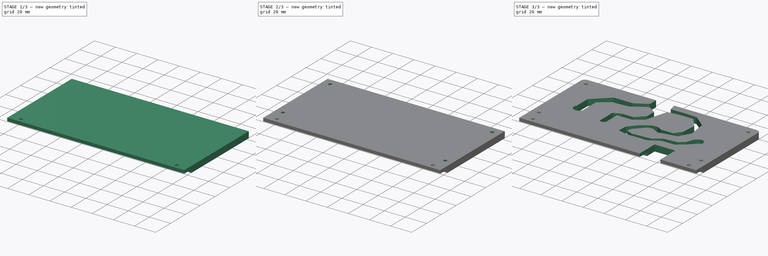
[diagram: build sequence overview — one tinted view per stage of 3, left to right]
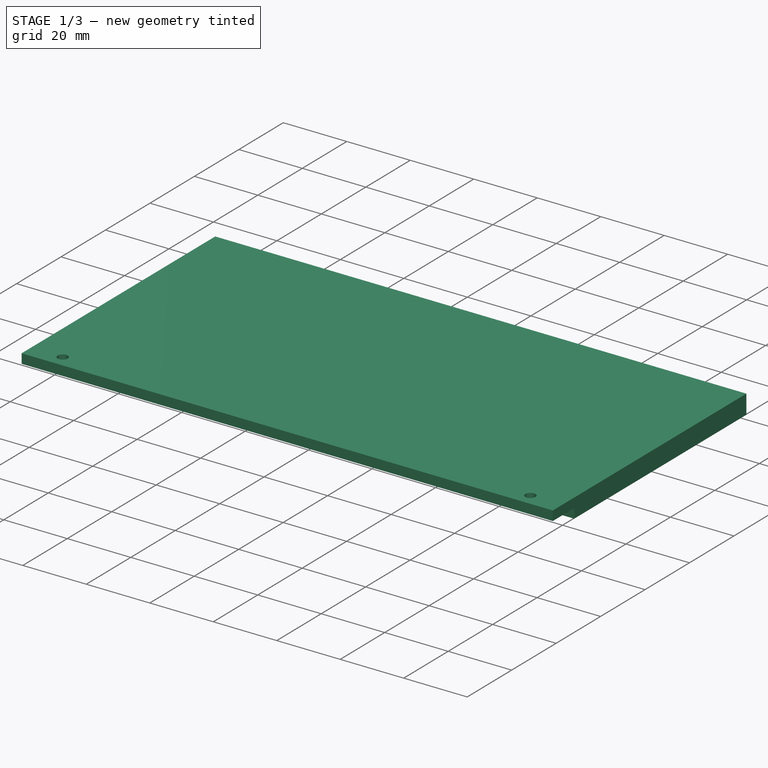
[diagram: stage 1 of 3 — iso view after this stage's code; geometry added in this stage tinted green]
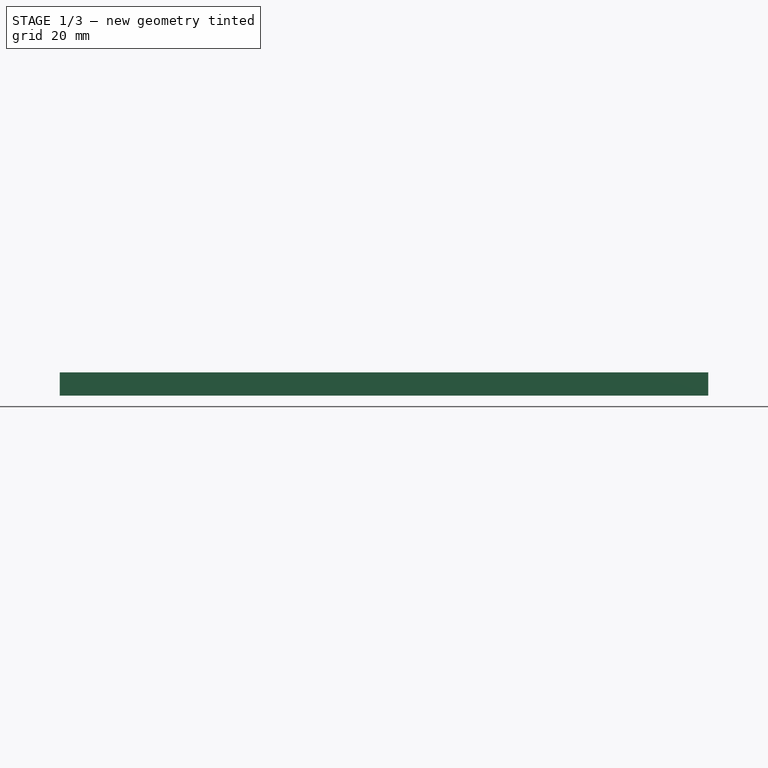
[diagram: stage 1 of 3 — front view after this stage's code; geometry added in this stage tinted green]
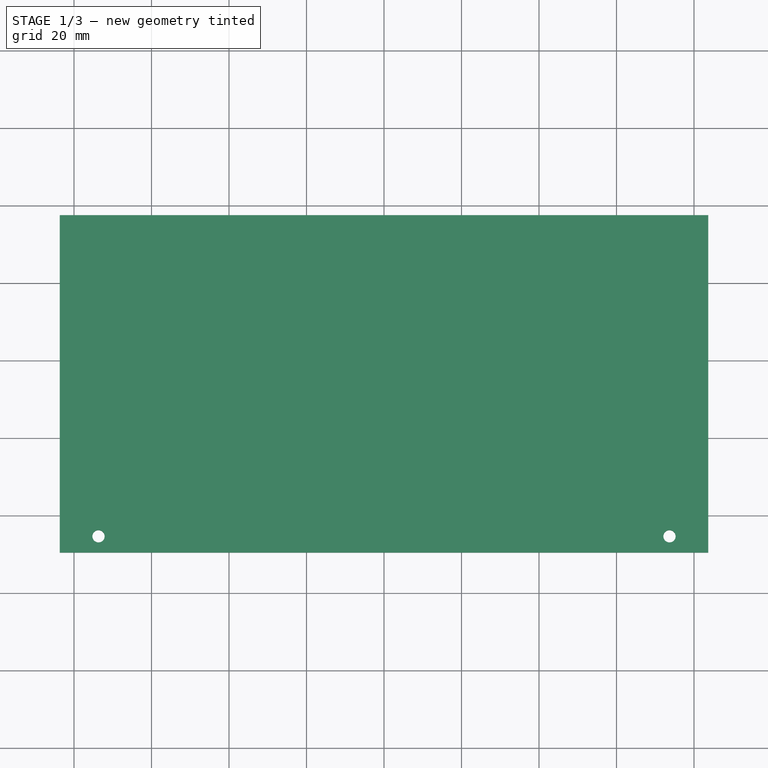
[diagram: stage 1 of 3 — top view after this stage's code; geometry added in this stage tinted green]
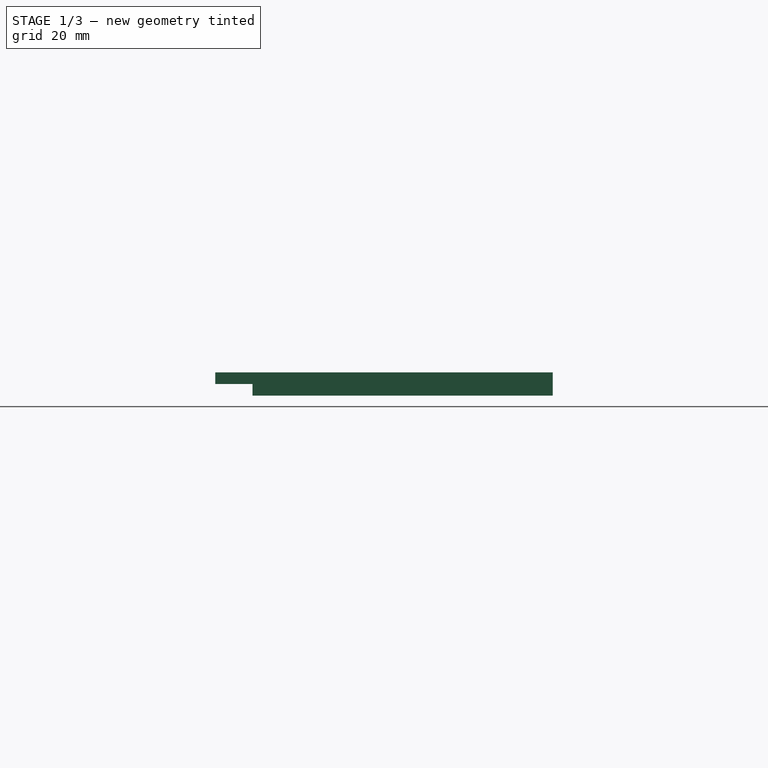
[diagram: stage 1 of 3 — right view after this stage's code; geometry added in this stage tinted green]
FCSTD DOCUMENT  (FreeCAD 0.20R29177 +426 (Git))
Label: libre_base (1)
License: All rights reserved
LicenseURL: http://en.wikipedia.org/wiki/All_rights_reserved
objects: Sketcher::SketchObject×6, PartDesign::Pocket×4, Spreadsheet::Sheet×2, PartDesign::Mirrored×2, PartDesign::Pad×1, PartDesign::Fillet×1, PartDesign::Body×1
note: 21 computed .brp shape members not serialized (recipe doc carries the construction recipe); baked Part::Feature solids carry a one-line shape summary decoded from their .brp
EXTERNAL_REF file=base_modular_holder.FCStd obj=Sketch
EXTERNAL_REF file=base_modular_holder.FCStd obj=Pad
EXTERNAL_REF file=base_modular_holder.FCStd obj=Sketch006
EXTERNAL_REF file=base_modular_holder.FCStd obj=Spreadsheet003
EXTERNAL_REF file=base_modular_holder.FCStd obj=Sketch009
EXTERNAL_REF file=base_modular_holder.FCStd obj=Spreadsheet004
EXTERNAL_REF file=libre_base.FCStd obj=Spreadsheet
EXTERNAL_REF file=libre_case.FCStd obj=Spreadsheet

FEATURE [Sketcher::SketchObject] Sketch
  FullyConstrained = true
  MapMode = 5
  Placement = pos=(0,0,0) rot=(0.57735,0.57735,0.57735;2.0944rad)
  Support = -> [YZ_Plane]
  expr: .Constraints.base_lip_xlen = <<base_modular_holder>>#<<Sketch>>.Constraints.back_lip_xlen - <<base_data>>.space
  expr: .Constraints.r_xlen = <<libre_data>>.full_ylen + <<base_data>>.screw_space * 2 + <<base_data>>.wall_thick * 2
  expr: Constraints[16] = <<base_modular_holder>>#<<Sketch>>.Constraints.small_ylen
  sketch-geometry (7):
    g0: LineSegment StartX=0 StartY=6 StartZ=0 EndX=77.5 EndY=6 EndZ=0
    g1: LineSegment StartX=77.5 StartY=6 StartZ=0 EndX=77.5 EndY=0 EndZ=0
    g2: LineSegment StartX=77.5 StartY=0 StartZ=0 EndX=0 EndY=0 EndZ=0
    g3: LineSegment StartX=0 StartY=0 StartZ=0 EndX=0 EndY=3 EndZ=0
    g4: LineSegment StartX=0 StartY=3 StartZ=0 EndX=-9.6 EndY=3 EndZ=0
    g5: LineSegment StartX=-9.6 StartY=3 StartZ=0 EndX=-9.6 EndY=6 EndZ=0
    g6: LineSegment StartX=-9.6 StartY=6 StartZ=0 EndX=0 EndY=6 EndZ=0
  constraints (21):
    c: PointOnObject(g0,g-2)
    c: Horizontal(g0)
    c: Coincident(g0,g1)
    c: PointOnObject(g1,g-1)
    c: Coincident(g1,g2)
    c: Vertical(g1)
    c: Coincident(g2,g3)
    c: PointOnObject(g3,g-2)
    c: Vertical(g3)
    c: Coincident(g3,g4)
    c: Horizontal(g4)
    c: Coincident(g4,g5)
    c: Vertical(g5)
    c: Coincident(g5,g6)
    c: Coincident(g6,g0)
    c: Horizontal(g6)
    c: DistanceY(g3,g3) = 3
    c: Horizontal(g2)
    c: Equal(g3,g5)
    c: DistanceX(g6,g6) = 9.6  'base_lip_xlen'
    c: DistanceX(g0,g0) = 77.5  'r_xlen'
FEATURE [Spreadsheet::Sheet] Spreadsheet  label="libre_data"
  cells = A1=Name; B1=Value; A2=full_ylen; B2(full_ylen)==57.5mm; D2=make the walls on the specific sides the thickness of the pad2type; A3=full_xlen; B3(full_xlen)==90.2mm; A4=full_zlen; B4(full_zlen)==19.5mm + 20mm; A5=pad2usb; B5(pad2usb)==2.2mm; A6=usb2av; B6(usb2av)==29.9mm; A7=av_len; B7(av_len)==7mm; A8=av_height; B8(av_height)==9.699999999999999mm + 1mm; A9=usb2hdmi; B9(usb2hdmi)==47.22mm; A10=hdmi_len; B10(hdmi_len)==15.2mm; A11=hdmi_height; B11(hdmi_height)==9.300000000000001mm + 1mm; A12=usb2power; B12(usb2power)==72.3mm - 0.5mm; A13=power_len; B13(power_len)==9mm; A14=power_height; B14(power_height)==7mm + 1mm; A15=power2pad; B15(power2pad)==1mm
FEATURE [PartDesign::Pad] Pad
  Direction = (1,-2e-16,3e-16)
  Length = 167.35
  Length2 = 10
  Midplane = true
  Placement = pos=(0,0,0) rot=(0.57735,0.57735,0.57735;2.0944rad)
  Profile = -> Sketch
  ReferenceAxis = -> Sketch [N_Axis]
  Type = 0
  expr: Length = <<base_modular_holder>>#<<Pad>>.Length
FEATURE [Spreadsheet::Sheet] Spreadsheet001  label="base_data"
  cells = A1=Name; B1=Value; A2=screw_space; B2(screw_space)==7mm; A3=wall_thick; B3(wall_thick)==3mm; A4=space; B4(space)==0.4mm
FEATURE [Sketcher::SketchObject] Sketch001
  FullyConstrained = true
  MapMode = 5
  Support = -> [XY_Plane]
  expr: Constraints[4] = <<base_modular_holder>>#<<Sketch>>.Constraints.back_lip_xlen / 2 + <<base_data>>.space
  expr: Constraints[5] = <<base_modular_holder>>#<<Sketch006>>.Constraints.hole_ylen
  expr: Constraints[7] = <<base_modular_holder>>#<<button_connect_data>>.screw_dia
  sketch-geometry (3):
    g0: LineSegment StartX=0 StartY=0 StartZ=0 EndX=0 EndY=-5.4 EndZ=0
    g1: LineSegment StartX=0 StartY=-5.4 StartZ=0 EndX=-73.675 EndY=-5.4 EndZ=0
    g2: Circle CenterX=-73.675 CenterY=-5.4 CenterZ=0 NormalX=0 NormalY=0 NormalZ=1 AngleXU=0 Radius=1.58
  constraints (8):
    c: Coincident(g0,g-1)
    c: PointOnObject(g0,g-2)
    c: Coincident(g1,g0)
    c: Horizontal(g1)
    c: DistanceY(g0,g0) = 5.4
    c: DistanceX(g1,g1) = 73.675
    c: Coincident(g2,g1)
    c: Diameter(g2) = 3.16
FEATURE [PartDesign::Pocket] Pocket
  BaseFeature = -> Pad
  Direction = (0,0,-1)
  Length = 5
  Length2 = 5
  Midplane = true
  Placement = pos=(0,0,0) rot=(0.57735,0.57735,0.57735;2.0944rad)
  Profile = -> Sketch001
  ReferenceAxis = -> Sketch001 [N_Axis]
  Type = 1
FEATURE [PartDesign::Mirrored] Mirrored
  BaseFeature = -> Pocket
  MirrorPlane = -> Sketch001 [V_Axis]
  Originals = -> [Pocket]
  Placement = pos=(0,0,0) rot=(0.57735,0.57735,0.57735;2.0944rad)
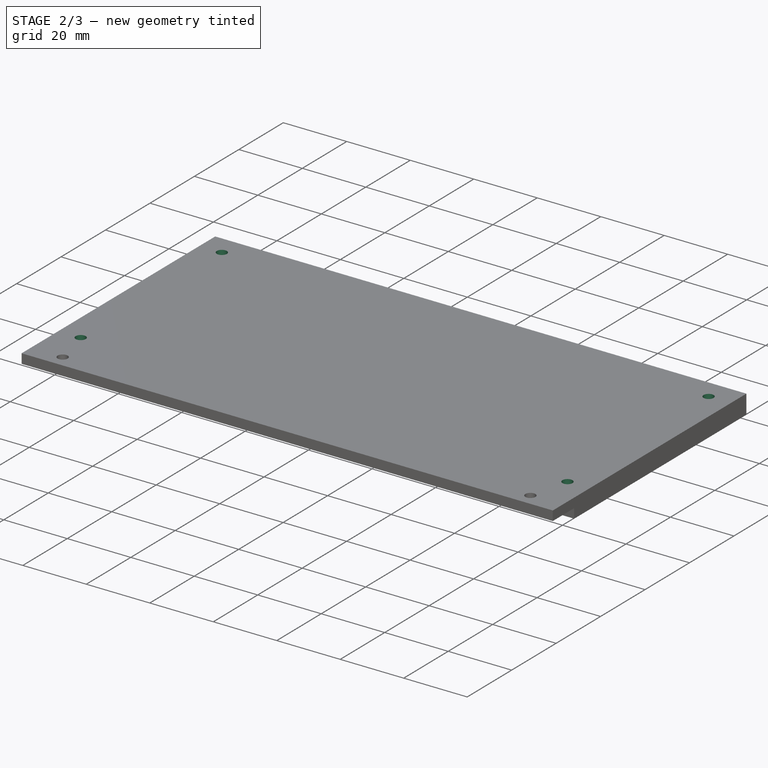
[diagram: stage 2 of 3 — iso view after this stage's code; geometry added in this stage tinted green]
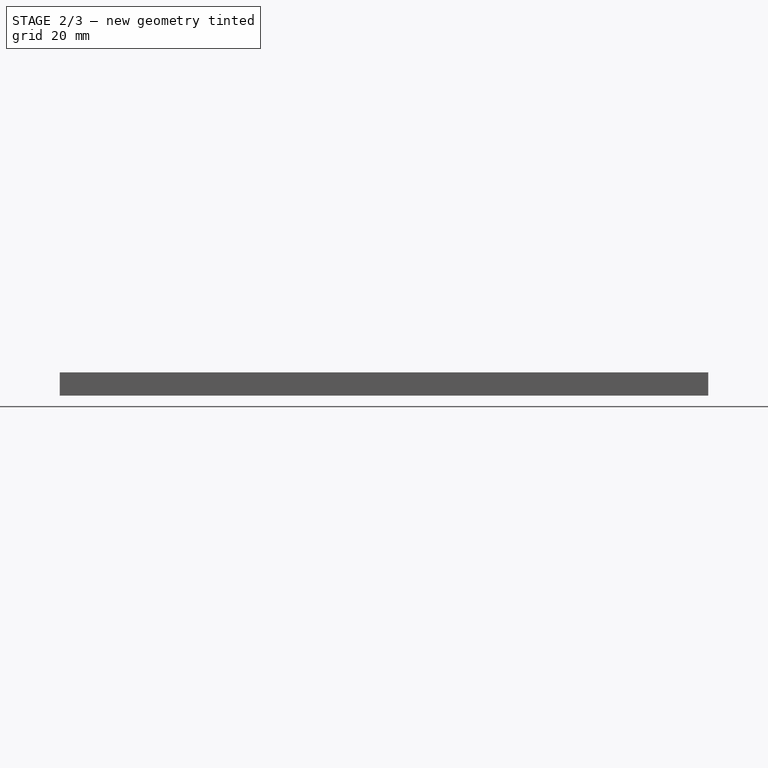
[diagram: stage 2 of 3 — front view after this stage's code; geometry added in this stage tinted green]
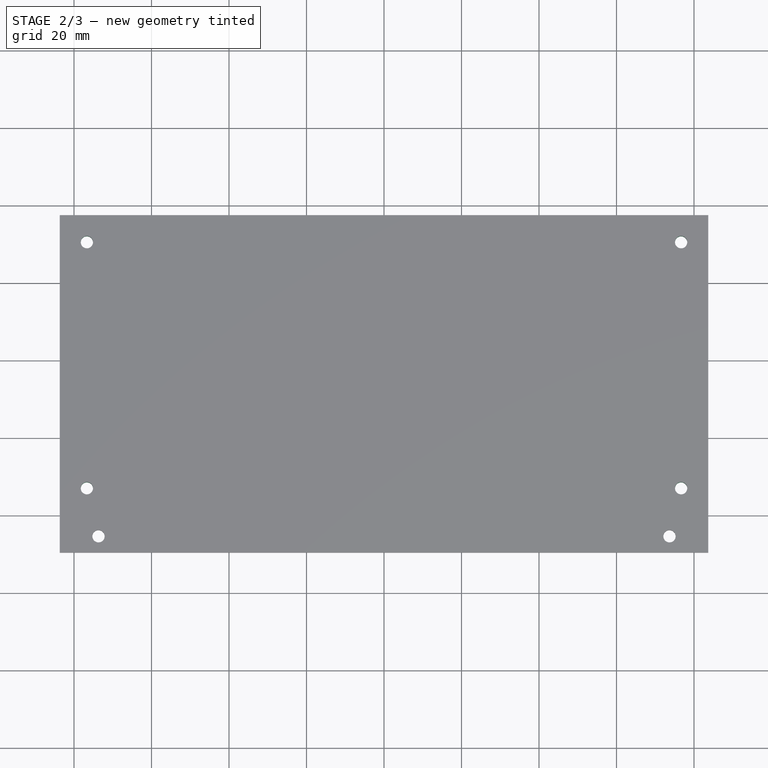
[diagram: stage 2 of 3 — top view after this stage's code; geometry added in this stage tinted green]
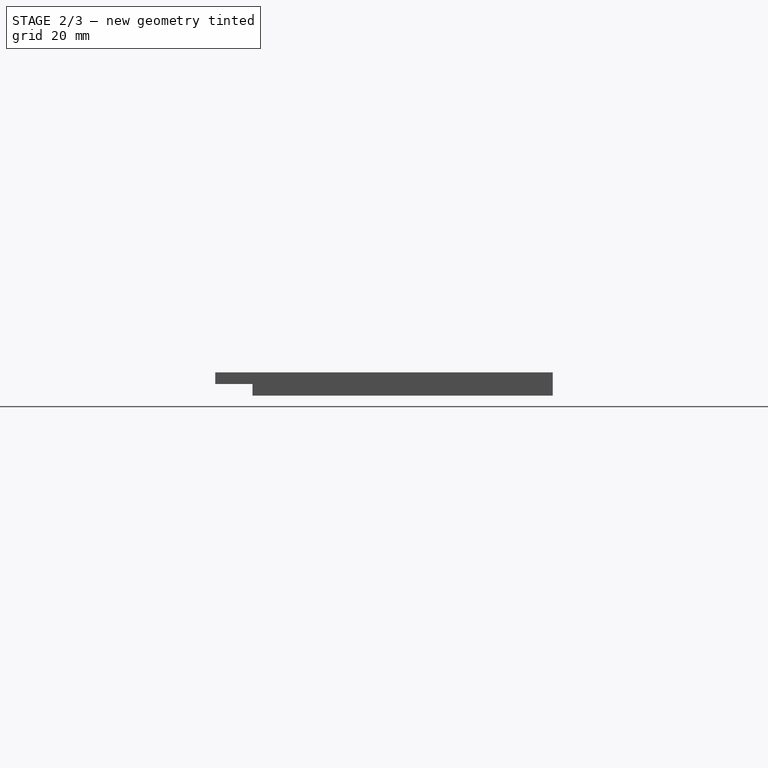
[diagram: stage 2 of 3 — right view after this stage's code; geometry added in this stage tinted green]
FEATURE [Sketcher::SketchObject] Sketch002
  FullyConstrained = true
  MapMode = 5
  Support = -> [XY_Plane]
  expr: .Constraints.dia = <<base_modular_holder>>#<<button_connect_data>>.screw_dia
  expr: .Constraints.pad_in = <<base_data>>.screw_space
  expr: Constraints[18] = <<Pad>>.Length / 2
  expr: Constraints[9] = <<Sketch>>.Constraints.r_xlen
  sketch-geometry (9):
    g0: LineSegment StartX=0 StartY=0 StartZ=0 EndX=0 EndY=7 EndZ=0
    g1: LineSegment StartX=0 StartY=7 StartZ=0 EndX=-76.675 EndY=7 EndZ=0
    g2: LineSegment StartX=0 StartY=7 StartZ=0 EndX=0 EndY=70.5 EndZ=0
    g3: LineSegment StartX=0 StartY=70.5 StartZ=0 EndX=0 EndY=77.5 EndZ=0
    g4: LineSegment StartX=0 StartY=70.5 StartZ=0 EndX=-76.675 EndY=70.5 EndZ=0
    g5: LineSegment StartX=-76.675 StartY=70.5 StartZ=0 EndX=-76.675 EndY=7 EndZ=0
    g6: LineSegment StartX=-76.675 StartY=70.5 StartZ=0 EndX=-83.675 EndY=70.5 EndZ=0
    g7: Circle CenterX=-76.675 CenterY=7 CenterZ=0 NormalX=0 NormalY=0 NormalZ=1 AngleXU=0 Radius=1.58
    g8: Circle CenterX=-76.675 CenterY=70.5 CenterZ=0 NormalX=0 NormalY=0 NormalZ=1 AngleXU=0 Radius=1.58
  constraints (24):
    c: Coincident(g0,g-1)
    c: PointOnObject(g0,g-2)
    c: Coincident(g1,g0)
    c: Horizontal(g1)
    c: DistanceY(g0,g0) = 7  'pad_in'
    c: Coincident(g2,g0)
    c: PointOnObject(g2,g-2)
    c: Coincident(g3,g2)
    c: PointOnObject(g3,g-2)
    c: DistanceY(g0,g3) = 77.5
    c: Equal(g0,g3)
    c: Coincident(g4,g2)
    c: Horizontal(g4)
    c: Coincident(g5,g4)
    c: Coincident(g5,g1)
    c: Vertical(g5)
    c: Coincident(g6,g4)
    c: Horizontal(g6)
    c: DistanceX(g6,g3) = 83.675
    c: Equal(g0,g6)
    c: Coincident(g7,g1)
    c: Coincident(g8,g4)
    c: Equal(g8,g7)
    c: Diameter(g8) = 3.16  'dia'
FEATURE [PartDesign::Pocket] Pocket001
  BaseFeature = -> Mirrored
  Direction = (0,0,-1)
  Length = 5
  Length2 = 5
  Midplane = true
  Placement = pos=(0,0,0) rot=(0.57735,0.57735,0.57735;2.0944rad)
  Profile = -> Sketch002
  ReferenceAxis = -> Sketch002 [N_Axis]
  Type = 1
FEATURE [PartDesign::Mirrored] Mirrored001
  BaseFeature = -> Pocket001
  MirrorPlane = -> Sketch002 [V_Axis]
  Originals = -> [Pocket001]
  Placement = pos=(0,0,0) rot=(0.57735,0.57735,0.57735;2.0944rad)
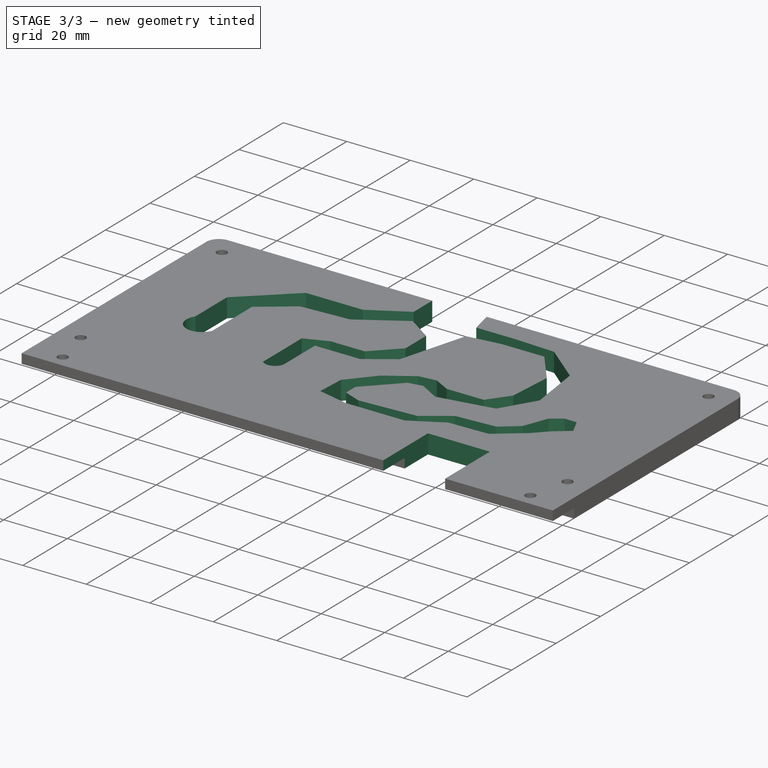
[diagram: stage 3 of 3 — iso view after this stage's code; geometry added in this stage tinted green]
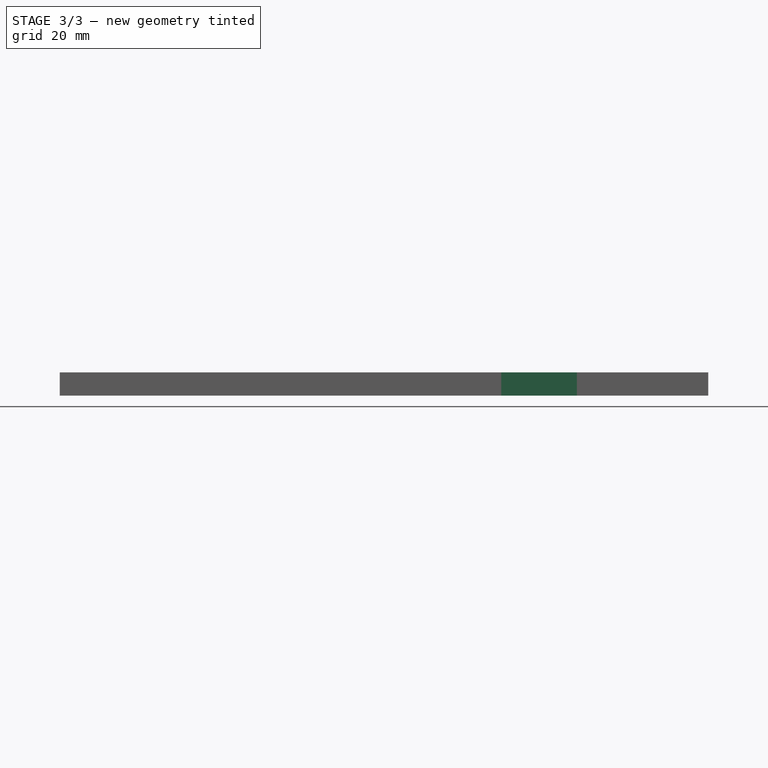
[diagram: stage 3 of 3 — front view after this stage's code; geometry added in this stage tinted green]
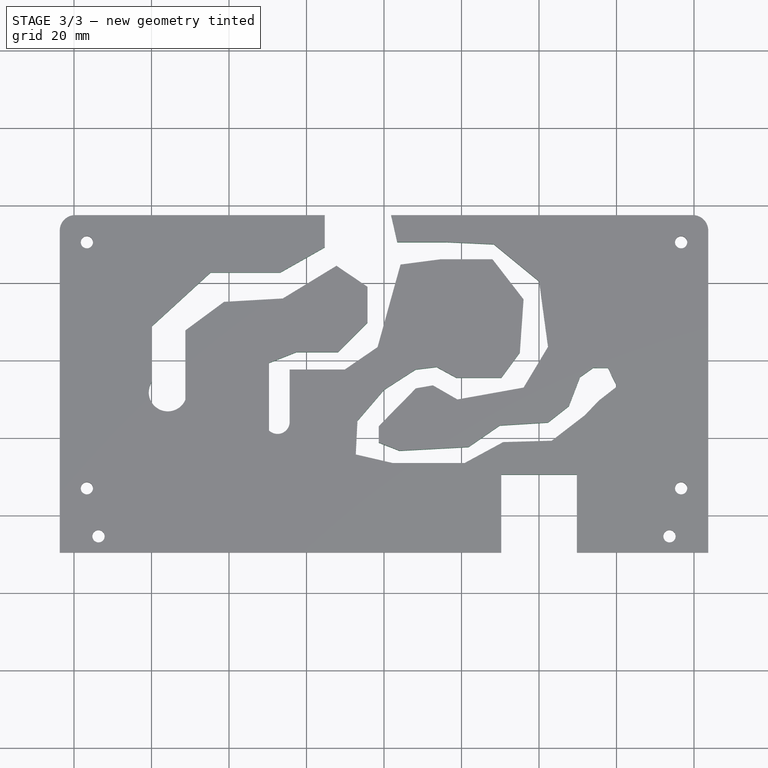
[diagram: stage 3 of 3 — top view after this stage's code; geometry added in this stage tinted green]
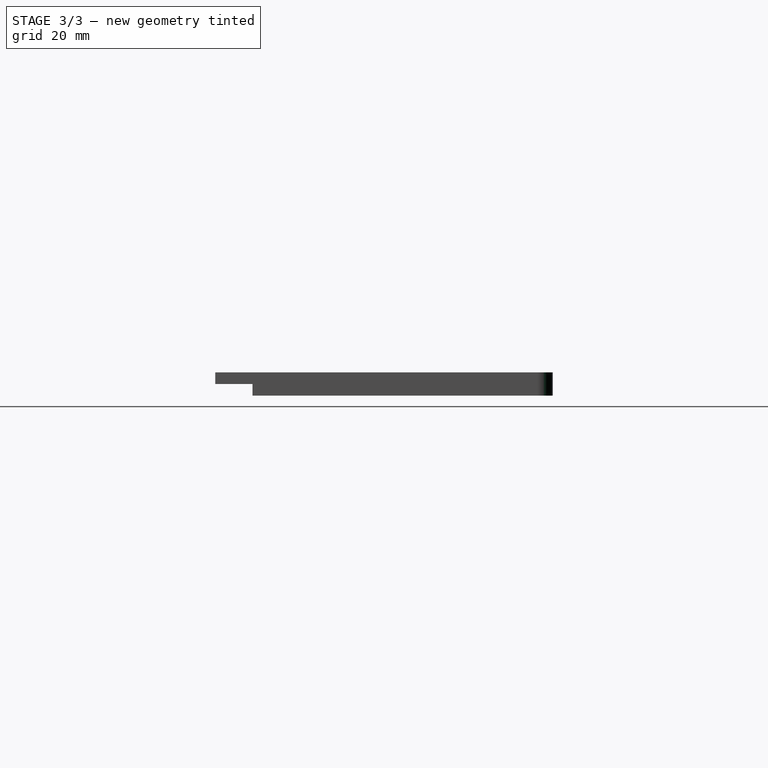
[diagram: stage 3 of 3 — right view after this stage's code; geometry added in this stage tinted green]
FEATURE [PartDesign::Fillet] Fillet
  Base = -> Mirrored001 [Edge14,Edge19]
  BaseFeature = -> Mirrored001
  Placement = pos=(0,0,0) rot=(0.57735,0.57735,0.57735;2.0944rad)
  Radius = 4
  SupportTransform = false
  UseAllEdges = false
FEATURE [Sketcher::SketchObject] Sketch003
  FullyConstrained = false
  MapMode = 5
  Support = -> [XY_Plane]
  sketch-geometry (60):
    g0: LineSegment StartX=0 StartY=85.4981 StartZ=0 EndX=-15.2985 EndY=85.4981 EndZ=0
    g1: LineSegment StartX=-15.2985 StartY=85.4981 StartZ=0 EndX=-15.2985 EndY=69.1774 EndZ=0
    g2: LineSegment StartX=-15.2985 StartY=69.1774 StartZ=0 EndX=-26.77 EndY=62.6841 EndZ=0
    g3: LineSegment StartX=-26.77 StartY=62.6841 StartZ=0 EndX=-44.7347 EndY=62.6841 EndZ=0
    g4: LineSegment StartX=-44.7347 StartY=62.6841 StartZ=0 EndX=-59.8723 EndY=48.8318 EndZ=0
    g5: LineSegment StartX=-59.8723 StartY=48.8318 StartZ=0 EndX=-59.8723 EndY=34.5091 EndZ=0
    g6: LineSegment StartX=-51.2481 StartY=29.848 StartZ=0 EndX=-51.2481 EndY=47.7495 EndZ=0
    g7: LineSegment StartX=-51.2481 StartY=47.7495 StartZ=0 EndX=-41.2716 EndY=55.1086 EndZ=0
    g8: LineSegment StartX=-41.2716 StartY=55.1086 StartZ=0 EndX=-26.1206 EndY=55.9744 EndZ=0
    g9: LineSegment StartX=-26.1206 StartY=55.9744 StartZ=0 EndX=-12.2683 EndY=64.4156 EndZ=0
    g10: LineSegment StartX=-11.8493 StartY=42.1386 StartZ=0 EndX=-22.5785 EndY=42.1386 EndZ=0
    g11: LineSegment StartX=-22.5785 StartY=42.1386 StartZ=0 EndX=-29.6842 EndY=39.3363 EndZ=0
    g12: LineSegment StartX=-29.6842 StartY=39.3363 StartZ=0 EndX=-29.6842 EndY=21.9219 EndZ=0
    g13: LineSegment StartX=-12.2683 StartY=64.4156 StartZ=0 EndX=-4.27383 EndY=59.0046 EndZ=0
    g14: LineSegment StartX=-4.27383 StartY=59.0046 StartZ=0 EndX=-4.27383 EndY=49.7464 EndZ=0
    g15: LineSegment StartX=-4.27383 StartY=49.7464 StartZ=0 EndX=-11.8493 EndY=42.1386 EndZ=0
    g16: LineSegment StartX=-24.3556 StartY=23.762 StartZ=0 EndX=-24.3556 EndY=37.6486 EndZ=0
    g17: LineSegment StartX=-24.3556 StartY=37.6486 StartZ=0 EndX=-10.1039 EndY=37.6486 EndZ=0
    g18: LineSegment StartX=-10.1039 StartY=37.6486 StartZ=0 EndX=-1.66264 EndY=43.4207 EndZ=0
    g19: LineSegment StartX=-1.66264 StartY=43.4207 StartZ=0 EndX=4.26618 EndY=64.7353 EndZ=0
    g20: LineSegment StartX=4.26618 StartY=64.7353 StartZ=0 EndX=14.6208 EndY=66.0933 EndZ=0
    g21: LineSegment StartX=14.6208 StartY=66.0933 StartZ=0 EndX=27.9982 EndY=66.0933 EndZ=0
    g22: LineSegment StartX=27.9982 StartY=66.0933 StartZ=0 EndX=36.0066 EndY=55.7579 EndZ=0
    g23: LineSegment StartX=36.0066 StartY=55.7579 StartZ=0 EndX=35.0518 EndY=42.016 EndZ=0
    g24: LineSegment StartX=35.0518 StartY=42.016 StartZ=0 EndX=30.2901 EndY=35.5228 EndZ=0
    g25: LineSegment StartX=30.2901 StartY=35.5228 StartZ=0 EndX=18.683 EndY=35.5228 EndZ=0
    g26: LineSegment StartX=18.683 StartY=35.5228 StartZ=0 EndX=13.5817 EndY=38.2942 EndZ=0
    g27: LineSegment StartX=13.5817 StartY=38.2942 StartZ=0 EndX=8.17067 EndY=37.6449 EndZ=0
    g28: LineSegment StartX=8.17067 StartY=37.6449 StartZ=0 EndX=0 EndY=32.3821 EndZ=0
    g29: LineSegment StartX=0 StartY=32.3821 StartZ=0 EndX=-6.85725 EndY=24.3737 EndZ=0
    g30: LineSegment StartX=-6.85725 StartY=24.3737 StartZ=0 EndX=-7.29014 EndY=15.716 EndZ=0
    g31: LineSegment StartX=-7.29014 StartY=15.716 StartZ=0 EndX=2.20367 EndY=13.5176 EndZ=0
    g32: LineSegment StartX=2.20367 StartY=13.5176 StartZ=0 EndX=20.8177 EndY=13.5176 EndZ=0
    g33: LineSegment StartX=20.8177 StartY=13.5176 StartZ=0 EndX=30.7468 EndY=18.9035 EndZ=0
    g34: LineSegment StartX=30.7468 StartY=18.9035 StartZ=0 EndX=43.2855 EndY=19.2681 EndZ=0
    g35: LineSegment StartX=43.2855 StartY=19.2681 StartZ=0 EndX=51.7267 EndY=25.7614 EndZ=0
    g36: LineSegment StartX=51.7267 StartY=25.7614 StartZ=0 EndX=55.5609 EndY=29.7185 EndZ=0
    g37: LineSegment StartX=0 StartY=85.4981 StartZ=0 EndX=3.43273 EndY=70.5395 EndZ=0
    g38: LineSegment StartX=3.43273 StartY=70.5395 StartZ=0 EndX=15.8898 EndY=70.5395 EndZ=0
    g39: LineSegment StartX=15.8898 StartY=70.5395 StartZ=0 EndX=28.3469 EndY=69.9645 EndZ=0
    g40: LineSegment StartX=28.3469 StartY=69.9645 StartZ=0 EndX=40.0375 EndY=60.3822 EndZ=0
    g41: LineSegment StartX=40.0375 StartY=60.3822 StartZ=0 EndX=42.3372 EndY=43.5171 EndZ=0
    g42: LineSegment StartX=42.3372 StartY=43.5171 StartZ=0 EndX=36.0129 EndY=32.9765 EndZ=0
    g43: LineSegment StartX=36.0129 StartY=32.9765 StartZ=0 EndX=18.9562 EndY=29.9102 EndZ=0
    g44: LineSegment StartX=18.9562 StartY=29.9102 StartZ=0 EndX=12.6318 EndY=33.5515 EndZ=0
    g45: LineSegment StartX=12.6318 StartY=33.5515 StartZ=0 EndX=8.22393 EndY=32.7849 EndZ=0
    g46: LineSegment StartX=8.22393 StartY=32.7849 StartZ=0 EndX=-1.35846 EndY=23.0108 EndZ=0
    g47: LineSegment StartX=-1.35846 StartY=23.0108 StartZ=0 EndX=-1.35846 EndY=18.7946 EndZ=0
    g48: LineSegment StartX=-1.35846 StartY=18.7946 StartZ=0 EndX=4.00767 EndY=16.6865 EndZ=0
    g49: LineSegment StartX=4.00767 StartY=16.6865 StartZ=0 EndX=21.8309 EndY=17.6447 EndZ=0
    g50: LineSegment StartX=21.8309 StartY=17.6447 StartZ=0 EndX=29.8801 EndY=23.2025 EndZ=0
    g51: LineSegment StartX=29.8801 StartY=23.2025 StartZ=0 EndX=42.3372 EndY=23.9691 EndZ=0
    g52: LineSegment StartX=42.3372 StartY=23.9691 StartZ=0 EndX=47.7034 EndY=28.1853 EndZ=0
    g53: LineSegment StartX=47.7034 StartY=28.1853 StartZ=0 EndX=50.5781 EndY=35.6596 EndZ=0
    g54: LineSegment StartX=50.5781 StartY=35.6596 StartZ=0 EndX=54.0022 EndY=38.0849 EndZ=0
    g55: LineSegment StartX=54.0022 StartY=38.0849 StartZ=0 EndX=57.8114 EndY=38.0524 EndZ=0
    g56: LineSegment StartX=57.8114 StartY=38.0524 StartZ=0 EndX=60.1111 EndY=33.2612 EndZ=0
    g57: LineSegment StartX=60.1111 StartY=33.2612 StartZ=0 EndX=55.5609 EndY=29.7185 EndZ=0
    g58: ArcOfCircle CenterX=-55.7858 CenterY=31.7611 CenterZ=0 NormalX=0 NormalY=0 NormalZ=1 AngleXU=0 Radius=4.92449 StartAngle=2.54959 EndAngle=5.88419
    g59: ArcOfCircle CenterX=-27.4777 CenterY=24.1675 CenterZ=0 NormalX=0 NormalY=0 NormalZ=1 AngleXU=0 Radius=3.14826 StartAngle=3.93575 EndAngle=6.15404
  constraints (77):
    c: PointOnObject(g0,g-2)
    c: Horizontal(g0)
    c: Coincident(g0,g1)
    c: Vertical(g1)
    c: Coincident(g1,g2)
    c: Coincident(g2,g3)
    c: Horizontal(g3)
    c: Coincident(g3,g4)
    c: Coincident(g4,g5)
    c: Vertical(g5)
    c: Vertical(g6)
    c: Coincident(g6,g7)
    c: Coincident(g7,g8)
    c: Coincident(g8,g9)
    c: Horizontal(g10)
    c: Coincident(g10,g11)
    c: Coincident(g11,g12)
    c: Vertical(g12)
    c: Coincident(g13,g9)
    c: Coincident(g13,g14)
    c: Vertical(g14)
    c: Coincident(g14,g15)
    c: Coincident(g15,g10)
    c: Vertical(g16)
    c: Coincident(g16,g17)
    c: Horizontal(g17)
    c: Coincident(g17,g18)
    c: Coincident(g18,g19)
    c: Coincident(g19,g20)
    c: Coincident(g20,g21)
    c: Horizontal(g21)
    c: Coincident(g21,g22)
    c: Coincident(g22,g23)
    c: Coincident(g23,g24)
    c: Coincident(g24,g25)
    c: Horizontal(g25)
    c: Coincident(g25,g26)
    c: Coincident(g26,g27)
    c: Coincident(g27,g28)
    c: PointOnObject(g28,g-2)
    c: Coincident(g28,g29)
    c: Coincident(g29,g30)
    c: Coincident(g30,g31)
    c: Coincident(g31,g32)
    c: Horizontal(g32)
    c: Coincident(g32,g33)
    c: Coincident(g33,g34)
    c: Coincident(g34,g35)
    c: Coincident(g35,g36)
    c: Coincident(g0,g37)
    c: Coincident(g37,g38)
    c: Horizontal(g38)
    c: Coincident(g38,g39)
    c: Coincident(g39,g40)
    c: Coincident(g40,g41)
    c: Coincident(g41,g42)
    c: Coincident(g42,g43)
    c: Coincident(g43,g44)
    c: Coincident(g44,g45)
    c: Coincident(g45,g46)
    c: Coincident(g46,g47)
    c: Vertical(g47)
    c: Coincident(g47,g48)
    c: Coincident(g48,g49)
    c: Coincident(g49,g50)
    c: Coincident(g50,g51)
    c: Coincident(g51,g52)
    c: Coincident(g52,g53)
    c: Coincident(g53,g54)
    c: Coincident(g54,g55)
    c: Coincident(g55,g56)
    c: Coincident(g56,g57)
    c: Coincident(g57,g36)
    c: Coincident(g58,g5)
    c: Coincident(g58,g6)
    c: Coincident(g59,g16)
    c: Coincident(g59,g12)
FEATURE [PartDesign::Pocket] Pocket002
  BaseFeature = -> Fillet
  Direction = (0,0,-1)
  Length = 5
  Length2 = 5
  Midplane = true
  Placement = pos=(0,0,0) rot=(0.57735,0.57735,0.57735;2.0944rad)
  Profile = -> Sketch003
  ReferenceAxis = -> Sketch003 [N_Axis]
  Type = 1
FEATURE [Sketcher::SketchObject] Sketch004
  FullyConstrained = true
  MapMode = 5
  Placement = pos=(0,0,0) rot=(1,0,0;1.5708rad)
  Support = -> [XZ_Plane]
  expr: Constraints[10] = <<base_modular_holder>>#<<wire_hole_data>>.wire_xlen * 1.5
  expr: Constraints[21] = <<base_modular_holder>>#<<Sketch009>>.Constraints.xlen
  expr: Constraints[9] = <<base_modular_holder>>#<<wire_hole_data>>.wire_ylen * 2
  sketch-geometry (8):
    g0: LineSegment StartX=0 StartY=0 StartZ=0 EndX=40.015 EndY=0 EndZ=0
    g1: LineSegment StartX=40.015 StartY=0 StartZ=0 EndX=30.265 EndY=0 EndZ=0
    g2: LineSegment StartX=40.015 StartY=0 StartZ=0 EndX=49.765 EndY=0 EndZ=0
    g3: LineSegment StartX=40.015 StartY=0 StartZ=0 EndX=40.015 EndY=8 EndZ=0
    g4: LineSegment StartX=30.265 StartY=0 StartZ=0 EndX=30.265 EndY=8 EndZ=0
    g5: LineSegment StartX=40.015 StartY=8 StartZ=0 EndX=30.265 EndY=8 EndZ=0
    g6: LineSegment StartX=40.015 StartY=8 StartZ=0 EndX=49.765 EndY=8 EndZ=0
    g7: LineSegment StartX=49.765 StartY=0 StartZ=0 EndX=49.765 EndY=8 EndZ=0
  constraints (22):
    c: Coincident(g0,g-1)
    c: Horizontal(g0)
    c: Coincident(g1,g0)
    c: PointOnObject(g1,g-1)
    c: Coincident(g2,g1)
    c: PointOnObject(g2,g0)
    c: Equal(g2,g1)
    c: Coincident(g3,g1)
    c: Vertical(g3)
    c: DistanceY(g3,g3) = 8
    c: DistanceX(g1,g2) = 19.5
    c: Coincident(g4,g1)
    c: Vertical(g4)
    c: Coincident(g5,g3)
    c: Coincident(g5,g4)
    c: Horizontal(g5)
    c: Coincident(g6,g5)
    c: Horizontal(g6)
    c: Coincident(g7,g2)
    c: Coincident(g7,g6)
    c: Vertical(g7)
    c: DistanceX(g0,g0) = 40.015
FEATURE [Sketcher::SketchObject] Sketch005
  FullyConstrained = false
  MapMode = 5
  Placement = pos=(0,0,0) rot=(0.57735,0.57735,0.57735;2.0944rad)
  Support = -> [YZ_Plane]
  expr: Constraints[8] = <<Sketch>>.Constraints.r_xlen - <<libre_base>>#<<libre_data>>.full_ylen - <<libre_case (1)>>#<<case_data>>.wall_thick - <<Sketch>>.Constraints.base_lip_xlen + <<base_modular_holder>>#<<wire_hole_data>>.wire_ylen
  sketch-geometry (5):
    g0: LineSegment StartX=0 StartY=0 StartZ=0 EndX=9.18231 EndY=-8e-15 EndZ=0
    g1: LineSegment StartX=11.4 StartY=6.02623 StartZ=0 EndX=11.4 EndY=2.21769 EndZ=0
    g2: ArcOfCircle CenterX=9.18231 CenterY=2.21769 CenterZ=0 NormalX=0 NormalY=0 NormalZ=1 AngleXU=0 Radius=2.21769 StartAngle=4.71239 EndAngle=6.28319
    g3: LineSegment StartX=9.18231 StartY=2.21769 StartZ=0 EndX=9.18231 EndY=-8e-15 EndZ=0
    g4: LineSegment StartX=9.18231 StartY=2.21769 StartZ=0 EndX=11.4 EndY=2.21769 EndZ=0
  constraints (12):
    c: Coincident(g0,g-1)
    c: PointOnObject(g0,g-1)
    c: Vertical(g1)
    c: Coincident(g2,g1)
    c: Coincident(g2,g0)
    c: Coincident(g3,g2)
    c: Coincident(g3,g0)
    c: Vertical(g3)
    c: DistanceX(g0,g1) = 11.4
    c: Coincident(g4,g2)
    c: Coincident(g4,g1)
    c: Horizontal(g4)
FEATURE [PartDesign::Pocket] Pocket003
  BaseFeature = -> Pocket002
  Direction = (0,1,-2e-16)
  Length = 21
  Length2 = 5
  Midplane = true
  Placement = pos=(0,0,0) rot=(0.57735,0.57735,0.57735;2.0944rad)
  Profile = -> Sketch004
  ReferenceAxis = -> Sketch004 [N_Axis]
  Type = 0
  expr: Length = <<Sketch>>.Constraints.r_xlen - <<libre_base>>#<<libre_data>>.full_ylen - <<libre_case (1)>>#<<case_data>>.wall_thick - <<Sketch>>.Constraints.base_lip_xlen + <<base_modular_holder>>#<<wire_hole_data>>.wire_ylen + <<Sketch>>.Constraints.base_lip_xlen
FEATURE [PartDesign::Body] Body
  Group = -> [Sketch,Pad,Sketch001,Pocket,Mirrored,Sketch002,Pocket001,Mirrored001,Fillet,Sketch003,Pocket002,Sketch004,Sketch005,Pocket003]
  Origin = -> Origin
  Tip = -> Pocket003
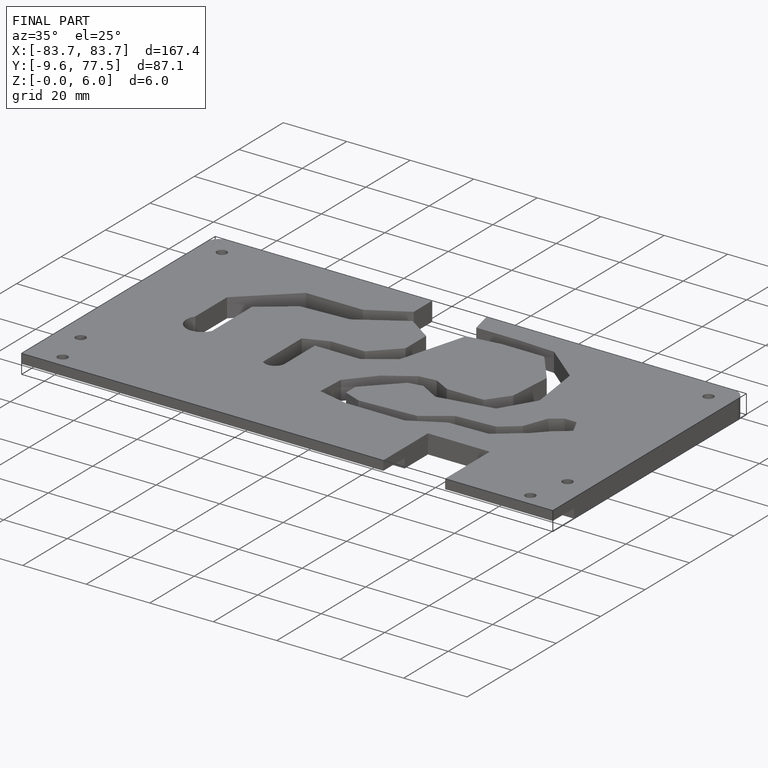
[diagram: finished part — iso view with bounding-box wireframe]
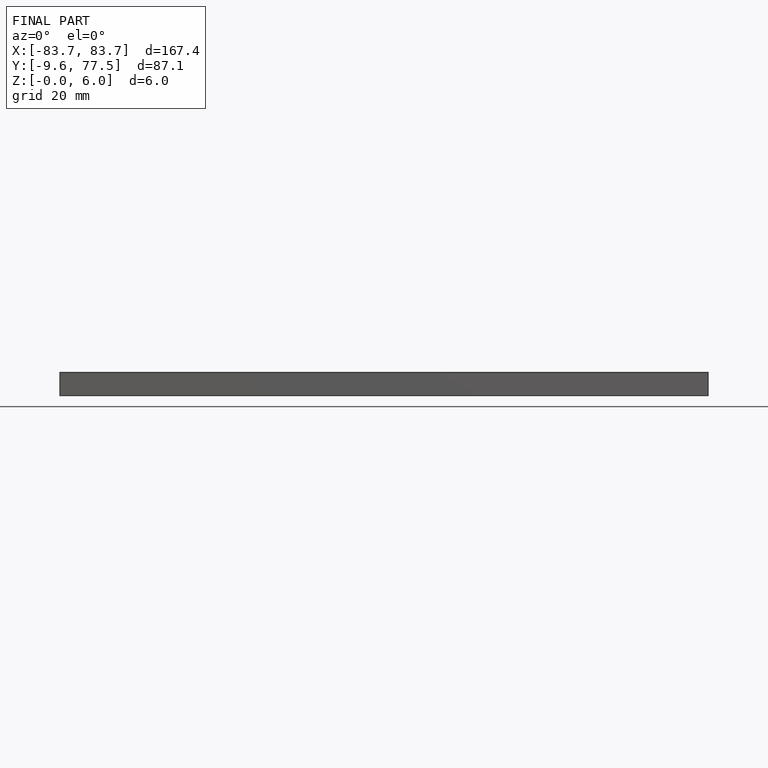
[diagram: finished part — front view with bounding-box wireframe]
